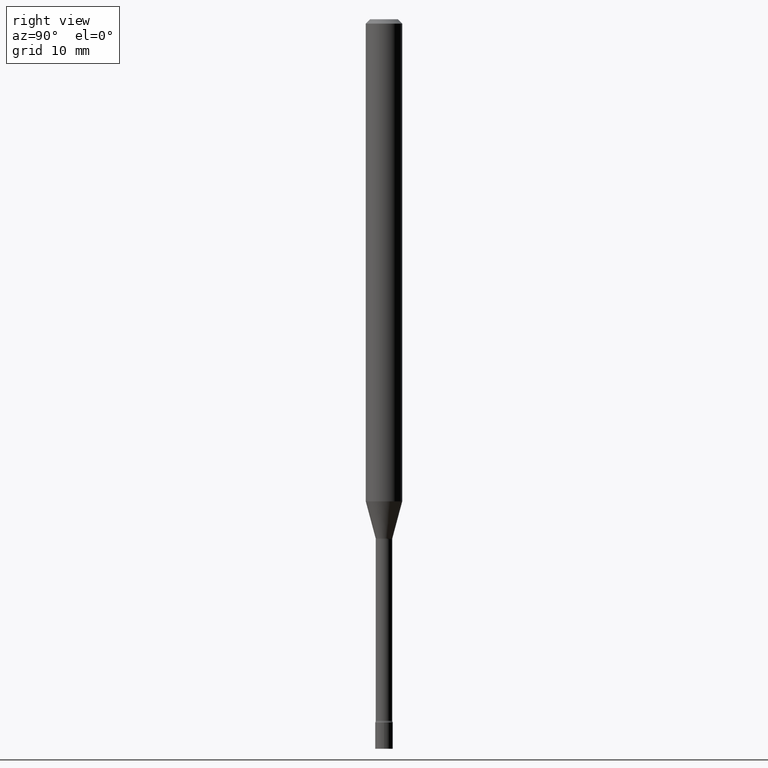
[diagram: clean part render]
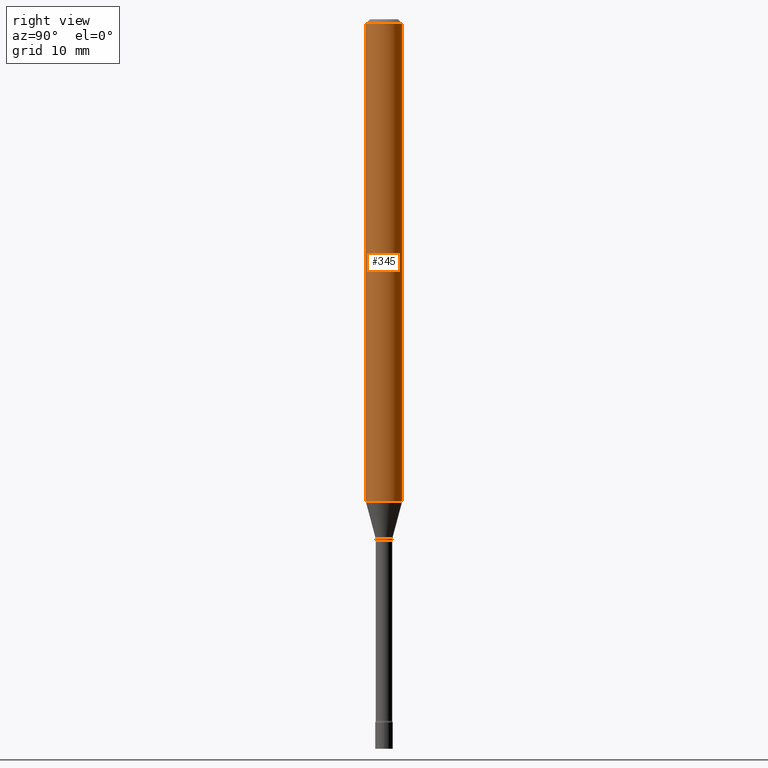
[diagram: same view with one face highlighted and labeled with its STEP entity id]
A machine part, right view. The second image highlights one B-rep face of the part: STEP entity #345.
In plain terms, the highlighted cylindrical surface (edge-blend (fillet) strip) has radius 1.5875 mm, axis along (-0, 0, 1).
Its self-contained STEP definition (entity closure, byte-faithful):
#45 = ORIENTED_EDGE ( 'NONE', *, *, #274, .T. ) ;
#48 = CIRCLE ( 'NONE', #192, 0.06250000000000000000 ) ;
#54 = DIRECTION ( 'NONE',  ( -6.982962677686265922E-15, -1.000000000000000000, 4.370956789862821150E-15 ) ) ;
#63 = VECTOR ( 'NONE', #457, 39.37007874015748143 ) ;
#78 = DIRECTION ( 'NONE',  ( -6.982962677686265922E-15, -1.000000000000000000, 3.483106191921935554E-15 ) ) ;
#80 = DIRECTION ( 'NONE',  ( -2.445514255903286790E-29, 3.491416252259917408E-15, 1.000000000000000000 ) ) ;
#83 = FACE_OUTER_BOUND ( 'NONE', #343, .T. ) ;
#97 = AXIS2_PLACEMENT_3D ( 'NONE', #166, #80, #54 ) ;
#102 = CARTESIAN_POINT ( 'NONE',  ( -4.364351673553513882E-16, -0.06250000000000580092, -1.651990657300387744 ) ) ;
#105 = DIRECTION ( 'NONE',  ( -2.445514255903287071E-29, 3.491416252259917408E-15, 1.000000000000000000 ) ) ;
#117 = ORIENTED_EDGE ( 'NONE', *, *, #189, .T. ) ;
#151 = EDGE_CURVE ( 'NONE', #378, #222, #48, .T. ) ;
#161 = CIRCLE ( 'NONE', #97, 0.06250000000000000000 ) ;
#166 = CARTESIAN_POINT ( 'NONE',  ( 4.039966703047140038E-29, -5.767787029480118116E-15, -1.651990657300387966 ) ) ;
#168 = CYLINDRICAL_SURFACE ( 'NONE', #401, 0.06250000000000000000 ) ;
#173 = VERTEX_POINT ( 'NONE', #194 ) ;
#189 = EDGE_CURVE ( 'NONE', #173, #222, #244, .T. ) ;
#192 = AXIS2_PLACEMENT_3D ( 'NONE', #247, #282, #78 ) ;
#194 = CARTESIAN_POINT ( 'NONE',  ( 4.440892098501027495E-16, 0.06249999999999419215, -1.651990657300388188 ) ) ;
#196 = ORIENTED_EDGE ( 'NONE', *, *, #151, .F. ) ;
#218 = VECTOR ( 'NONE', #105, 39.37007874015748143 ) ;
#222 = VERTEX_POINT ( 'NONE', #442 ) ;
#224 = CARTESIAN_POINT ( 'NONE',  ( -4.364351673553916201E-16, -0.06250000000000000000, 2.182135157662448380E-16 ) ) ;
#244 = LINE ( 'NONE', #256, #218 ) ;
#247 = CARTESIAN_POINT ( 'NONE',  ( 3.668271383854937122E-31, -5.237124378389886195E-17, -0.01500000000000003067 ) ) ;
#253 = VERTEX_POINT ( 'NONE', #102 ) ;
#256 = CARTESIAN_POINT ( 'NONE',  ( 4.440892098500625669E-16, 0.06250000000000000000, -2.182135157662448380E-16 ) ) ;
#262 = CARTESIAN_POINT ( 'NONE',  ( 0.000000000000000000, 0.000000000000000000, 0.000000000000000000 ) ) ;
#274 = EDGE_CURVE ( 'NONE', #253, #173, #161, .T. ) ;
#275 = ORIENTED_EDGE ( 'NONE', *, *, #297, .F. ) ;
#282 = DIRECTION ( 'NONE',  ( -2.445514255903286790E-29, 3.491416252259917408E-15, 1.000000000000000000 ) ) ;
#297 = EDGE_CURVE ( 'NONE', #253, #378, #455, .T. ) ;
#343 = EDGE_LOOP ( 'NONE', ( #45, #117, #196, #275 ) ) ;
#345 = ADVANCED_FACE ( 'NONE', ( #83 ), #168, .T. ) ;
#370 = DIRECTION ( 'NONE',  ( -2.445514255903286790E-29, 3.491416252259917408E-15, 1.000000000000000000 ) ) ;
#378 = VERTEX_POINT ( 'NONE', #406 ) ;
#401 = AXIS2_PLACEMENT_3D ( 'NONE', #262, #370, #404 ) ;
#404 = DIRECTION ( 'NONE',  ( -6.982962677686265922E-15, -1.000000000000000000, 3.491416252259917408E-15 ) ) ;
#406 = CARTESIAN_POINT ( 'NONE',  ( -4.364351673553912750E-16, -0.06250000000000005551, -0.01499999999999981209 ) ) ;
#442 = CARTESIAN_POINT ( 'NONE',  ( 4.440892098501032425E-16, 0.06249999999999995143, -0.01500000000000024751 ) ) ;
#455 = LINE ( 'NONE', #224, #63 ) ;
#457 = DIRECTION ( 'NONE',  ( -2.445514255903287071E-29, 3.491416252259917408E-15, 1.000000000000000000 ) ) ;